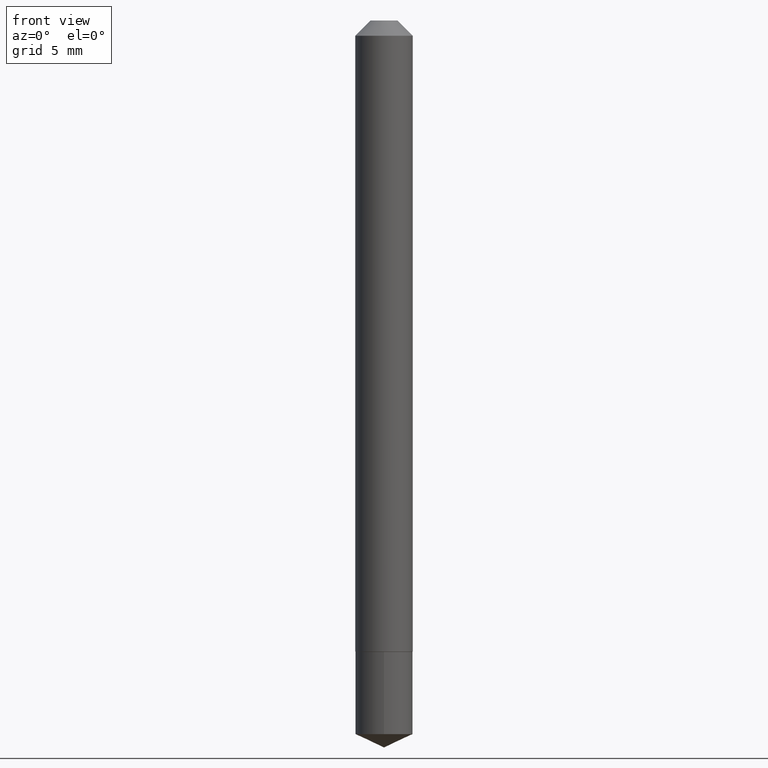
[diagram: clean part render]
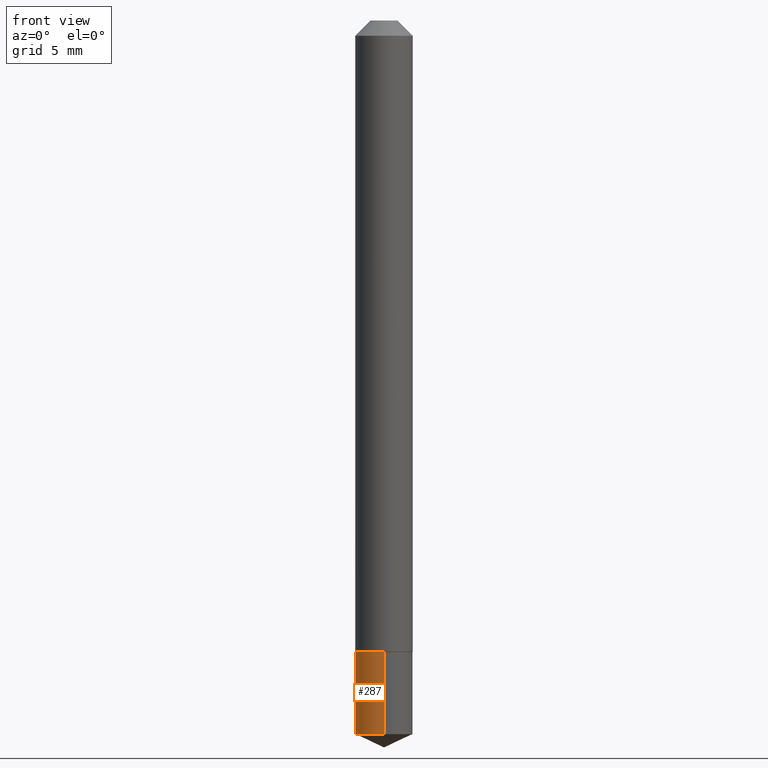
[diagram: same view with one face highlighted and labeled with its STEP entity id]
A machine part, front view. The second image highlights one B-rep face of the part: STEP entity #287.
In plain terms, the highlighted cylindrical surface (edge-blend (fillet) strip) has radius 1.4999 mm, axis along (-0, 0, 1).
Its self-contained STEP definition (entity closure, byte-faithful):
#4 = CARTESIAN_POINT ( 'NONE',  ( 3.177153072995728757E-29, -4.536132555425014733E-15, -1.299199999999999910 ) ) ;
#5 = ORIENTED_EDGE ( 'NONE', *, *, #292, .F. ) ;
#10 = VERTEX_POINT ( 'NONE', #284 ) ;
#30 = CARTESIAN_POINT ( 'NONE',  ( 4.195754854663708995E-16, 0.05904999999999546723, -1.299200000000000133 ) ) ;
#39 = CIRCLE ( 'NONE', #167, 0.05904999999999999832 ) ;
#44 = DIRECTION ( 'NONE',  ( -6.982962677686265922E-15, -1.000000000000000000, 4.626330217890369336E-15 ) ) ;
#50 = CARTESIAN_POINT ( 'NONE',  ( -4.123439461173421824E-16, -0.05905000000000452942, -1.299199999999999688 ) ) ;
#56 = EDGE_CURVE ( 'NONE', #243, #216, #250, .T. ) ;
#67 = FACE_OUTER_BOUND ( 'NONE', #319, .T. ) ;
#73 = DIRECTION ( 'NONE',  ( -2.445313604768416538E-29, 3.491703596105404816E-15, 1.000000000000000000 ) ) ;
#76 = CARTESIAN_POINT ( 'NONE',  ( 3.177153072995728757E-29, -4.536132555425014733E-15, -1.299199999999999910 ) ) ;
#87 = AXIS2_PLACEMENT_3D ( 'NONE', #275, #73, #187 ) ;
#91 = AXIS2_PLACEMENT_3D ( 'NONE', #4, #307, #337 ) ;
#119 = ORIENTED_EDGE ( 'NONE', *, *, #140, .F. ) ;
#138 = VECTOR ( 'NONE', #207, 39.37007874015748143 ) ;
#140 = EDGE_CURVE ( 'NONE', #10, #161, #297, .T. ) ;
#158 = ORIENTED_EDGE ( 'NONE', *, *, #56, .T. ) ;
#161 = VERTEX_POINT ( 'NONE', #238 ) ;
#167 = AXIS2_PLACEMENT_3D ( 'NONE', #76, #365, #44 ) ;
#170 = VECTOR ( 'NONE', #314, 39.37007874015748143 ) ;
#187 = DIRECTION ( 'NONE',  ( -6.982962677686265922E-15, -1.000000000000000000, 4.626330217890369336E-15 ) ) ;
#191 = CARTESIAN_POINT ( 'NONE',  ( -4.123439461173381888E-16, -0.05905000000000514698, -1.468564532785947341 ) ) ;
#207 = DIRECTION ( 'NONE',  ( -2.445313604768416818E-29, 3.491703596105404816E-15, 1.000000000000000000 ) ) ;
#214 = CYLINDRICAL_SURFACE ( 'NONE', #91, 0.05904999999999999832 ) ;
#216 = VERTEX_POINT ( 'NONE', #50 ) ;
#238 = CARTESIAN_POINT ( 'NONE',  ( 4.195754854663750410E-16, 0.05904999999999546723, -1.299200000000000133 ) ) ;
#243 = VERTEX_POINT ( 'NONE', #191 ) ;
#250 = LINE ( 'NONE', #338, #170 ) ;
#255 = EDGE_CURVE ( 'NONE', #10, #243, #261, .T. ) ;
#261 = CIRCLE ( 'NONE', #87, 0.05904999999999999832 ) ;
#275 = CARTESIAN_POINT ( 'NONE',  ( 3.591302469182453116E-29, -5.127503303606418827E-15, -1.468564532785947563 ) ) ;
#284 = CARTESIAN_POINT ( 'NONE',  ( 4.195754854663751396E-16, 0.05904999999999488436, -1.468564532785947785 ) ) ;
#287 = ADVANCED_FACE ( 'NONE', ( #67 ), #214, .T. ) ;
#292 = EDGE_CURVE ( 'NONE', #161, #216, #39, .T. ) ;
#297 = LINE ( 'NONE', #30, #138 ) ;
#307 = DIRECTION ( 'NONE',  ( -2.445313604768416538E-29, 3.491703596105404816E-15, 1.000000000000000000 ) ) ;
#314 = DIRECTION ( 'NONE',  ( -2.445313604768416818E-29, 3.491703596105404816E-15, 1.000000000000000000 ) ) ;
#319 = EDGE_LOOP ( 'NONE', ( #119, #355, #158, #5 ) ) ;
#337 = DIRECTION ( 'NONE',  ( -6.982962677686265922E-15, -1.000000000000000000, 4.626330217890369336E-15 ) ) ;
#338 = CARTESIAN_POINT ( 'NONE',  ( -4.123439461173421824E-16, -0.05905000000000452942, -1.299199999999999688 ) ) ;
#355 = ORIENTED_EDGE ( 'NONE', *, *, #255, .T. ) ;
#365 = DIRECTION ( 'NONE',  ( -2.445313604768416538E-29, 3.491703596105404816E-15, 1.000000000000000000 ) ) ;